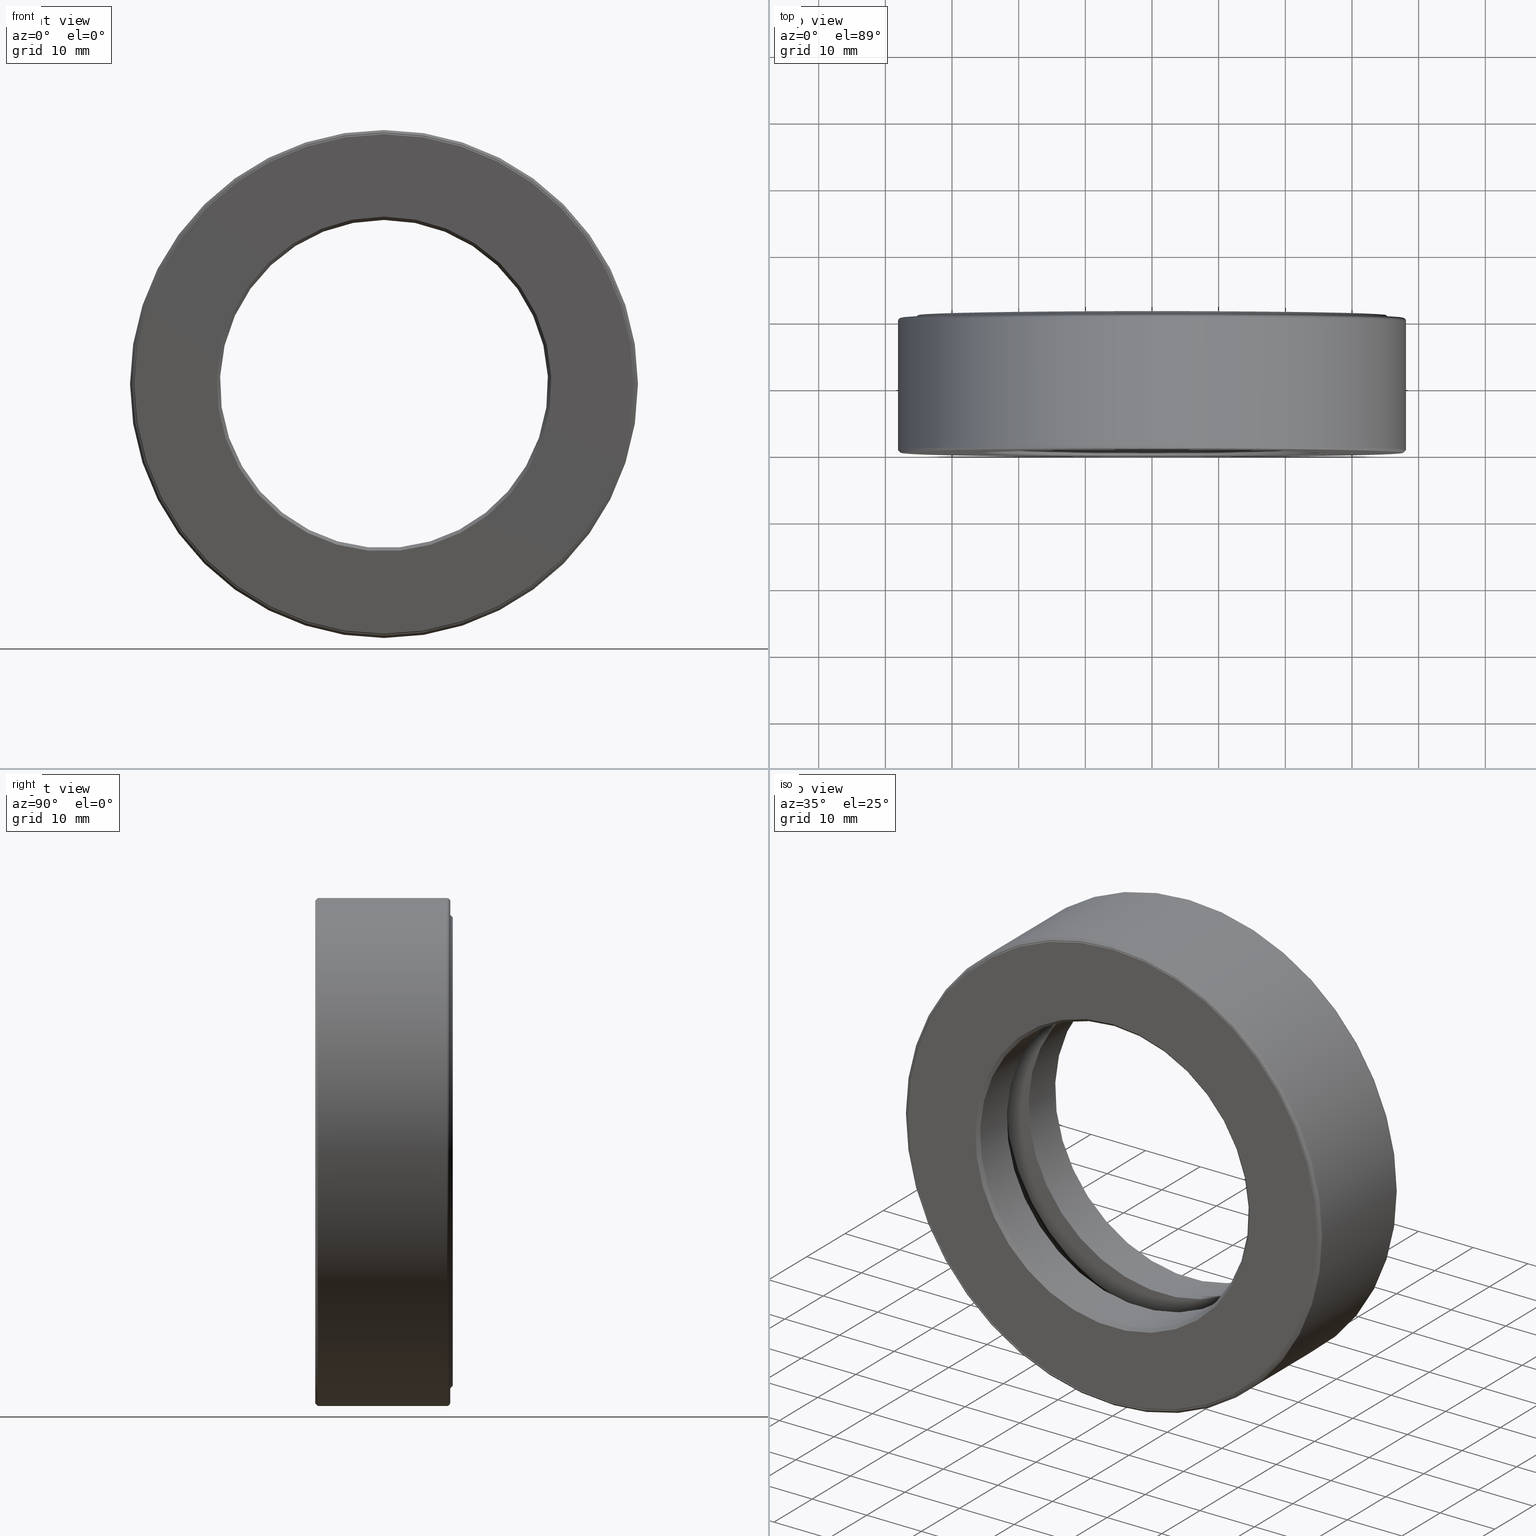
[diagram: canonical four-view strip — front | top / right | iso, engineering-drawing reading convention]
A machine part, canonical four-view strip (front | top / right | iso — engineering-drawing reading convention). The complete STEP part file that produces these views, byte-faithful:
ISO-10303-21;
HEADER;
FILE_DESCRIPTION (( 'STEP AP203' ),
    '1' );
FILE_NAME ('T-100-30.step',
    '2016-06-29T18:27:29',
    ( '' ),
    ( '' ),
    'SwSTEP 2.0',
    'SolidWorks 2016',
    '' );
FILE_SCHEMA (( 'CONFIG_CONTROL_DESIGN' ));
ENDSEC;

DATA;
#1 = CARTESIAN_POINT ( 'NONE',  ( 0.0000000000000000000, 0.5187499999999997100, 0.9687500000000001100 ) ) ;
#2 = APPROVAL_STATUS ( 'not_yet_approved' ) ;
#3 = EDGE_LOOP ( 'NONE', ( #564 ) ) ;
#4 = VERTEX_POINT ( 'NONE', #190 ) ;
#5 = ORIENTED_EDGE ( 'NONE', *, *, #63, .F. ) ;
#6 = CARTESIAN_POINT ( 'NONE',  ( 0.0000000000000000000, -8.323599355695802500E-017, 1.485000000000000100 ) ) ;
#7 = AXIS2_PLACEMENT_3D ( 'NONE', #551, #312, #440 ) ;
#8 = DIRECTION ( 'NONE',  ( 0.0000000000000000000, 0.0000000000000000000, 1.000000000000000000 ) ) ;
#9 = FACE_OUTER_BOUND ( 'NONE', #27, .T. ) ;
#10 = CARTESIAN_POINT ( 'NONE',  ( 0.0000000000000000000, 0.0000000000000000000, 0.0000000000000000000 ) ) ;
#11 = ORIENTED_EDGE ( 'NONE', *, *, #181, .T. ) ;
#12 = CIRCLE ( 'NONE', #398, 0.9687500000000001100 ) ;
#13 = EDGE_CURVE ( 'NONE', #537, #537, #278, .T. ) ;
#14 = AXIS2_PLACEMENT_3D ( 'NONE', #221, #179, #182 ) ;
#15 = CLOSED_SHELL ( 'NONE', ( #553, #34, #366, #40, #589, #276, #273, #214 ) ) ;
#16 = VERTEX_POINT ( 'NONE', #466 ) ;
#17 = EDGE_LOOP ( 'NONE', ( #71 ) ) ;
#18 = EDGE_LOOP ( 'NONE', ( #38 ) ) ;
#19 = EDGE_LOOP ( 'NONE', ( #397 ) ) ;
#20 = FACE_OUTER_BOUND ( 'NONE', #146, .T. ) ;
#21 = AXIS2_PLACEMENT_3D ( 'NONE', #37, #31, #460 ) ;
#22 = EDGE_CURVE ( 'NONE', #205, #205, #57, .T. ) ;
#23 = UNCERTAINTY_MEASURE_WITH_UNIT (LENGTH_MEASURE( 1.000000000000000100E-005 ), #427, 'distance_accuracy_value', 'NONE');
#24 = DIRECTION ( 'NONE',  ( -0.0000000000000000000, 1.000000000000000000, -0.0000000000000000000 ) ) ;
#25 = DIRECTION ( 'NONE',  ( -0.0000000000000000000, 1.000000000000000000, 0.0000000000000000000 ) ) ;
#26 = DIRECTION ( 'NONE',  ( -0.0000000000000000000, 1.000000000000000000, -0.0000000000000000000 ) ) ;
#27 = EDGE_LOOP ( 'NONE', ( #11 ) ) ;
#28 = VERTEX_POINT ( 'NONE', #45 ) ;
#29 = ADVANCED_FACE ( 'NONE', ( ), #367, .T. ) ;
#30 = CC_DESIGN_APPROVAL ( #346, ( #308 ) ) ;
#31 = DIRECTION ( 'NONE',  ( -0.0000000000000000000, 1.000000000000000000, -0.0000000000000000000 ) ) ;
#32 = AXIS2_PLACEMENT_3D ( 'NONE', #307, #26, #208 ) ;
#33 = CARTESIAN_POINT ( 'NONE',  ( 0.0000000000000000000, 0.0000000000000000000, 0.0000000000000000000 ) ) ;
#34 = ADVANCED_FACE ( 'NONE', ( #399, #102 ), #507, .F. ) ;
#35 = EDGE_LOOP ( 'NONE', ( #489 ) ) ;
#36 = VERTEX_POINT ( 'NONE', #100 ) ;
#37 = CARTESIAN_POINT ( 'NONE',  ( 0.0000000000000000000, 0.7245000000000004800, 0.0000000000000000000 ) ) ;
#38 = ORIENTED_EDGE ( 'NONE', *, *, #201, .F. ) ;
#39 = CONICAL_SURFACE ( 'NONE', #125, 1.474999999999999600, 0.7853981633974469500 ) ;
#40 = ADVANCED_FACE ( 'NONE', ( #114, #546 ), #153, .F. ) ;
#41 = PLANE ( 'NONE',  #358 ) ;
#42 = CARTESIAN_POINT ( 'NONE',  ( 0.0000000000000000000, 0.5187499999999997100, 0.0000000000000000000 ) ) ;
#43 = CARTESIAN_POINT ( 'NONE',  ( 0.0000000000000000000, 0.7774999999999998600, 0.0000000000000000000 ) ) ;
#44 = DIRECTION ( 'NONE',  ( 0.0000000000000000000, 0.0000000000000000000, 1.000000000000000000 ) ) ;
#45 = CARTESIAN_POINT ( 'NONE',  ( 0.0000000000000000000, 0.7245000000000004800, 1.472999999999999900 ) ) ;
#46 = APPROVAL_PERSON_ORGANIZATION ( #326, #331, #183 ) ;
#47 = ORIENTED_EDGE ( 'NONE', *, *, #13, .T. ) ;
#48 = VERTEX_POINT ( 'NONE', #425 ) ;
#49 = PERSON_AND_ORGANIZATION_ROLE ( 'classification_officer' ) ;
#50 = AXIS2_PLACEMENT_3D ( 'NONE', #43, #594, #453 ) ;
#51 = DIRECTION ( 'NONE',  ( 0.0000000000000000000, 0.0000000000000000000, 1.000000000000000000 ) ) ;
#52 = DIRECTION ( 'NONE',  ( 1.000000000000000000, 0.0000000000000000000, 0.0000000000000000000 ) ) ;
#53 = CARTESIAN_POINT ( 'NONE',  ( 0.0000000000000000000, 0.7774999999999998600, 1.420000000000000200 ) ) ;
#54 = APPROVAL ( #517, 'UNSPECIFIED' ) ;
#55 = DIRECTION ( 'NONE',  ( 0.0000000000000000000, 0.0000000000000000000, -1.000000000000000000 ) ) ;
#56 = APPLICATION_PROTOCOL_DEFINITION ( 'international standard', 'config_control_design', 1994, #343 ) ;
#57 = CIRCLE ( 'NONE', #566, 1.480000000000000000 ) ;
#58 = VERTEX_POINT ( 'NONE', #423 ) ;
#59 = CLOSED_SHELL ( 'NONE', ( #29 ) ) ;
#60 = CYLINDRICAL_SURFACE ( 'NONE', #14, 0.9687500000000001100 ) ;
#61 = DIRECTION ( 'NONE',  ( -0.0000000000000000000, 1.000000000000000000, -0.0000000000000000000 ) ) ;
#62 = AXIS2_PLACEMENT_3D ( 'NONE', #91, #274, #409 ) ;
#63 = EDGE_CURVE ( 'NONE', #508, #508, #199, .T. ) ;
#64 = AXIS2_PLACEMENT_3D ( 'NONE', #445, #493, #270 ) ;
#65 = CLOSED_SHELL ( 'NONE', ( #596 ) ) ;
#66 = VERTEX_POINT ( 'NONE', #472 ) ;
#67 = PRODUCT_DEFINITION_FORMATION_WITH_SPECIFIED_SOURCE ( 'ANY', '', #582, .NOT_KNOWN. ) ;
#68 = AXIS2_PLACEMENT_3D ( 'NONE', #117, #491, #408 ) ;
#69 = ORIENTED_EDGE ( 'NONE', *, *, #310, .F. ) ;
#70 = VERTEX_POINT ( 'NONE', #527 ) ;
#71 = ORIENTED_EDGE ( 'NONE', *, *, #323, .T. ) ;
#72 = CYLINDRICAL_SURFACE ( 'NONE', #130, 1.480000000000000000 ) ;
#73 = DIRECTION ( 'NONE',  ( -0.0000000000000000000, 1.000000000000000000, 0.0000000000000000000 ) ) ;
#74 = EDGE_LOOP ( 'NONE', ( #314 ) ) ;
#75 = VERTEX_POINT ( 'NONE', #193 ) ;
#76 = CARTESIAN_POINT ( 'NONE',  ( 0.0000000000000000000, 0.5187499999999997100, 0.0000000000000000000 ) ) ;
#77 = CC_DESIGN_PERSON_AND_ORGANIZATION_ASSIGNMENT ( #95, #333, ( #67 ) ) ;
#78 = EDGE_CURVE ( 'NONE', #195, #195, #412, .T. ) ;
#79 = ADVANCED_FACE ( 'NONE', ( #406, #499 ), #562, .F. ) ;
#80 = AXIS2_PLACEMENT_3D ( 'NONE', #133, #411, #561 ) ;
#81 = DIRECTION ( 'NONE',  ( 0.0000000000000000000, -1.000000000000000000, 0.0000000000000000000 ) ) ;
#82 = DIRECTION ( 'NONE',  ( -0.0000000000000000000, 1.000000000000000000, -0.0000000000000000000 ) ) ;
#83 = DATE_AND_TIME ( #471, #442 ) ;
#84 = EDGE_LOOP ( 'NONE', ( #430 ) ) ;
#85 = VERTEX_POINT ( 'NONE', #1 ) ;
#86 = ORIENTED_EDGE ( 'NONE', *, *, #323, .F. ) ;
#87 = FACE_OUTER_BOUND ( 'NONE', #377, .T. ) ;
#88 = ADVANCED_FACE ( 'NONE', ( #443, #327 ), #132, .F. ) ;
#89 = CARTESIAN_POINT ( 'NONE',  ( 0.0000000000000000000, 0.4062499999999997800, 0.0000000000000000000 ) ) ;
#90 = CC_DESIGN_SECURITY_CLASSIFICATION ( #256, ( #67 ) ) ;
#91 = CARTESIAN_POINT ( 'NONE',  ( 0.0000000000000000000, 0.5187499999999997100, 0.0000000000000000000 ) ) ;
#92 = AXIS2_PLACEMENT_3D ( 'NONE', #329, #380, #325 ) ;
#93 = CARTESIAN_POINT ( 'NONE',  ( 0.0000000000000000000, 0.5187499999999997100, 0.0000000000000000000 ) ) ;
#94 = FACE_BOUND ( 'NONE', #296, .T. ) ;
#95 = PERSON_AND_ORGANIZATION ( #202, #520 ) ;
#96 = APPROVAL_ROLE ( '' ) ;
#97 = FACE_OUTER_BOUND ( 'NONE', #595, .T. ) ;
#98 = AXIS2_PLACEMENT_3D ( 'NONE', #342, #55, #532 ) ;
#99 = APPLICATION_PROTOCOL_DEFINITION ( 'international standard', 'config_control_design', 1994, #384 ) ;
#100 = CARTESIAN_POINT ( 'NONE',  ( 0.0000000000000000000, 0.5187499999999997100, 1.133499999999999700 ) ) ;
#101 = DIRECTION ( 'NONE',  ( -1.000000000000000000, 0.0000000000000000000, 3.491481338843131800E-015 ) ) ;
#102 = FACE_OUTER_BOUND ( 'NONE', #230, .T. ) ;
#103 = FACE_OUTER_BOUND ( 'NONE', #35, .T. ) ;
#104 = CARTESIAN_POINT ( 'NONE',  ( 0.0000000000000000000, -8.216886543443291800E-017, 0.0000000000000000000 ) ) ;
#105 = EDGE_LOOP ( 'NONE', ( #204 ) ) ;
#106 = AXIS2_PLACEMENT_3D ( 'NONE', #245, #191, #574 ) ;
#107 = EDGE_CURVE ( 'NONE', #160, #160, #578, .T. ) ;
#108 = DIRECTION ( 'NONE',  ( -0.0000000000000000000, 1.000000000000000000, -0.0000000000000000000 ) ) ;
#109 = CIRCLE ( 'NONE', #62, 1.433499999999999800 ) ;
#110 = COORDINATED_UNIVERSAL_TIME_OFFSET ( 5, 0, .BEHIND. ) ;
#111 = CLOSED_SHELL ( 'NONE', ( #555, #88, #560, #79, #266, #283, #455, #509, #414, #548, #222, #171, #324, #495, #164, #225 ) ) ;
#112 = FACE_OUTER_BOUND ( 'NONE', #105, .T. ) ;
#113 = AXIS2_PLACEMENT_3D ( 'NONE', #217, #317, #371 ) ;
#114 = FACE_OUTER_BOUND ( 'NONE', #84, .T. ) ;
#115 = LOCAL_TIME ( 14, 27, 29.00000000000000000, #239 ) ;
#116 = EDGE_LOOP ( 'NONE', ( #528 ) ) ;
#117 = CARTESIAN_POINT ( 'NONE',  ( 0.0000000000000000000, 0.5187499999999997100, 0.0000000000000000000 ) ) ;
#118 = CARTESIAN_POINT ( 'NONE',  ( 2.800790529781973000E-016, 0.8124999999999998900, 0.0000000000000000000 ) ) ;
#119 = AXIS2_PLACEMENT_3D ( 'NONE', #148, #108, #150 ) ;
#120 = CIRCLE ( 'NONE', #251, 1.480000000000000000 ) ;
#121 = LOCAL_TIME ( 14, 27, 29.00000000000000000, #355 ) ;
#122 = ORIENTED_EDGE ( 'NONE', *, *, #13, .F. ) ;
#123 = CIRCLE ( 'NONE', #7, 1.480000000000000000 ) ;
#124 = EDGE_CURVE ( 'NONE', #593, #593, #290, .T. ) ;
#125 = AXIS2_PLACEMENT_3D ( 'NONE', #104, #243, #8 ) ;
#126 = ORIENTED_EDGE ( 'NONE', *, *, #107, .F. ) ;
#127 = PERSON_AND_ORGANIZATION ( #202, #520 ) ;
#128 = CARTESIAN_POINT ( 'NONE',  ( 1.122951057337007100E-033, -8.317945869304494700E-017, 0.0000000000000000000 ) ) ;
#129 = ORIENTED_EDGE ( 'NONE', *, *, #285, .T. ) ;
#130 = AXIS2_PLACEMENT_3D ( 'NONE', #10, #142, #344 ) ;
#131 = DIRECTION ( 'NONE',  ( -0.0000000000000000000, 1.000000000000000000, -0.0000000000000000000 ) ) ;
#132 = PLANE ( 'NONE',  #469 ) ;
#133 = CARTESIAN_POINT ( 'NONE',  ( 0.0000000000000000000, 0.0000000000000000000, 0.0000000000000000000 ) ) ;
#134 = CIRCLE ( 'NONE', #590, 1.133499999999999700 ) ;
#135 = ORIENTED_EDGE ( 'NONE', *, *, #379, .T. ) ;
#136 = FACE_OUTER_BOUND ( 'NONE', #185, .T. ) ;
#137 = MANIFOLD_SOLID_BREP ( 'Revolve2[1]', #111 ) ;
#138 = CARTESIAN_POINT ( 'NONE',  ( 0.0000000000000000000, 0.01499999999999984000, 0.0000000000000000000 ) ) ;
#139 = APPROVAL_STATUS ( 'not_yet_approved' ) ;
#140 = CARTESIAN_POINT ( 'NONE',  ( 0.0000000000000000000, 0.4062499999999997800, 0.0000000000000000000 ) ) ;
#141 = CARTESIAN_POINT ( 'NONE',  ( 0.0000000000000000000, 0.0000000000000000000, 0.0000000000000000000 ) ) ;
#142 = DIRECTION ( 'NONE',  ( -0.0000000000000000000, 1.000000000000000000, -0.0000000000000000000 ) ) ;
#143 = MECHANICAL_CONTEXT ( 'NONE', #384, 'mechanical' ) ;
#144 = EDGE_LOOP ( 'NONE', ( #452 ) ) ;
#145 = APPROVAL_PERSON_ORGANIZATION ( #174, #346, #96 ) ;
#146 = EDGE_LOOP ( 'NONE', ( #304 ) ) ;
#147 = AXIS2_PLACEMENT_3D ( 'NONE', #170, #82, #418 ) ;
#148 = CARTESIAN_POINT ( 'NONE',  ( 0.0000000000000000000, 0.8124999999999998900, 0.0000000000000000000 ) ) ;
#149 = CARTESIAN_POINT ( 'NONE',  ( 0.0000000000000000000, 0.8124999999999997800, 0.9887500000000003500 ) ) ;
#150 = DIRECTION ( 'NONE',  ( 0.0000000000000000000, 0.0000000000000000000, 1.000000000000000000 ) ) ;
#151 = CARTESIAN_POINT ( 'NONE',  ( 4.481316298405160600E-015, 0.4062499999999997800, 1.283499999999999900 ) ) ;
#152 = CARTESIAN_POINT ( 'NONE',  ( 0.0000000000000000000, 0.0000000000000000000, 0.0000000000000000000 ) ) ;
#153 = CYLINDRICAL_SURFACE ( 'NONE', #496, 0.9687500000000001100 ) ;
#154 = ORIENTED_EDGE ( 'NONE', *, *, #156, .F. ) ;
#155 = FACE_OUTER_BOUND ( 'NONE', #320, .T. ) ;
#156 = EDGE_CURVE ( 'NONE', #66, #66, #461, .T. ) ;
#157 = AXIS2_PLACEMENT_3D ( 'NONE', #140, #606, #467 ) ;
#158 = EDGE_CURVE ( 'NONE', #328, #328, #120, .T. ) ;
#159 = ORIENTED_EDGE ( 'NONE', *, *, #364, .T. ) ;
#160 = VERTEX_POINT ( 'NONE', #523 ) ;
#161 = ORIENTED_EDGE ( 'NONE', *, *, #310, .T. ) ;
#162 = SPHERICAL_SURFACE ( 'NONE', #98, 0.1874999999999999400 ) ;
#163 = PLANE ( 'NONE',  #581 ) ;
#164 = ADVANCED_FACE ( 'NONE', ( #511, #531 ), #60, .F. ) ;
#165 = DIRECTION ( 'NONE',  ( 0.0000000000000000000, 0.0000000000000000000, 1.000000000000000000 ) ) ;
#166 = ORIENTED_EDGE ( 'NONE', *, *, #424, .F. ) ;
#167 = DIRECTION ( 'NONE',  ( -0.0000000000000000000, 1.000000000000000000, -0.0000000000000000000 ) ) ;
#168 = ADVANCED_FACE ( 'NONE', ( ), #162, .T. ) ;
#169 = AXIS2_PLACEMENT_3D ( 'NONE', #93, #502, #219 ) ;
#170 = CARTESIAN_POINT ( 'NONE',  ( 0.0000000000000000000, -8.323599355695802500E-017, 0.0000000000000000000 ) ) ;
#171 = ADVANCED_FACE ( 'NONE', ( #136, #584 ), #39, .T. ) ;
#172 = DIRECTION ( 'NONE',  ( 0.0000000000000000000, 0.0000000000000000000, -1.000000000000000000 ) ) ;
#173 = EDGE_LOOP ( 'NONE', ( #154 ) ) ;
#174 = PERSON_AND_ORGANIZATION ( #202, #520 ) ;
#175 = ORIENTED_EDGE ( 'NONE', *, *, #390, .T. ) ;
#176 = CIRCLE ( 'NONE', #32, 1.420000000000000200 ) ;
#177 = DIRECTION ( 'NONE',  ( -0.0000000000000000000, 1.000000000000000000, 0.0000000000000000000 ) ) ;
#178 = AXIS2_PLACEMENT_3D ( 'NONE', #138, #226, #465 ) ;
#179 = DIRECTION ( 'NONE',  ( -0.0000000000000000000, 1.000000000000000000, -0.0000000000000000000 ) ) ;
#180 = DIRECTION ( 'NONE',  ( -0.0000000000000000000, 1.000000000000000000, 0.0000000000000000000 ) ) ;
#181 = EDGE_CURVE ( 'NONE', #500, #500, #603, .T. ) ;
#182 = DIRECTION ( 'NONE',  ( 0.0000000000000000000, 0.0000000000000000000, 1.000000000000000000 ) ) ;
#183 = APPROVAL_ROLE ( '' ) ;
#184 = AXIS2_PLACEMENT_3D ( 'NONE', #289, #192, #605 ) ;
#185 = EDGE_LOOP ( 'NONE', ( #432 ) ) ;
#186 = FACE_OUTER_BOUND ( 'NONE', #18, .T. ) ;
#187 = DIRECTION ( 'NONE',  ( 0.0000000000000000000, 0.0000000000000000000, 1.000000000000000000 ) ) ;
#188 = DATE_TIME_ROLE ( 'classification_date' ) ;
#189 = CARTESIAN_POINT ( 'NONE',  ( -6.088621761296505900E-017, 0.2937499999999999600, 0.0000000000000000000 ) ) ;
#190 = CARTESIAN_POINT ( 'NONE',  ( 0.0000000000000000000, 0.8124999999999998900, 1.385000000000000000 ) ) ;
#191 = DIRECTION ( 'NONE',  ( -0.0000000000000000000, 1.000000000000000000, -0.0000000000000000000 ) ) ;
#192 = DIRECTION ( 'NONE',  ( -0.0000000000000000000, 1.000000000000000000, -0.0000000000000000000 ) ) ;
#193 = CARTESIAN_POINT ( 'NONE',  ( 0.0000000000000000000, 0.7924999999999997600, 0.9687500000000001100 ) ) ;
#194 = EDGE_LOOP ( 'NONE', ( #135 ) ) ;
#195 = VERTEX_POINT ( 'NONE', #292 ) ;
#196 = ORIENTED_EDGE ( 'NONE', *, *, #156, .T. ) ;
#197 = CIRCLE ( 'NONE', #538, 0.9687500000000001100 ) ;
#198 = AXIS2_PLACEMENT_3D ( 'NONE', #264, #549, #487 ) ;
#199 = CIRCLE ( 'NONE', #382, 0.9887500000000003500 ) ;
#200 = SPHERICAL_SURFACE ( 'NONE', #203, 0.1874999999999999400 ) ;
#201 = EDGE_CURVE ( 'NONE', #269, #269, #282, .T. ) ;
#202 = PERSON ( 'UNSPECIFIED', 'UNSPECIFIED', 'UNSPECIFIED', ('UNSPECIFIED'), ('UNSPECIFIED'), ('UNSPECIFIED') ) ;
#203 = AXIS2_PLACEMENT_3D ( 'NONE', #151, #101, #470 ) ;
#204 = ORIENTED_EDGE ( 'NONE', *, *, #22, .T. ) ;
#205 = VERTEX_POINT ( 'NONE', #420 ) ;
#206 = ORIENTED_EDGE ( 'NONE', *, *, #124, .T. ) ;
#207 = CONICAL_SURFACE ( 'NONE', #599, 0.9687500000000000000, 0.7853981633974586000 ) ;
#208 = DIRECTION ( 'NONE',  ( 0.0000000000000000000, 0.0000000000000000000, 1.000000000000000000 ) ) ;
#209 = EDGE_CURVE ( 'NONE', #4, #4, #482, .T. ) ;
#210 = FACE_OUTER_BOUND ( 'NONE', #194, .T. ) ;
#211 = EDGE_LOOP ( 'NONE', ( #5 ) ) ;
#212 = CIRCLE ( 'NONE', #220, 1.133499999999999700 ) ;
#213 = DIRECTION ( 'NONE',  ( 0.0000000000000000000, 0.0000000000000000000, 1.000000000000000000 ) ) ;
#214 = ADVANCED_FACE ( 'NONE', ( #87, #402 ), #231, .T. ) ;
#215 = AXIS2_PLACEMENT_3D ( 'NONE', #42, #417, #44 ) ;
#216 = DIRECTION ( 'NONE',  ( 0.0000000000000000000, 0.0000000000000000000, 1.000000000000000000 ) ) ;
#217 = CARTESIAN_POINT ( 'NONE',  ( 0.0000000000000000000, 0.7974999999999998800, 0.0000000000000000000 ) ) ;
#218 = ORIENTED_EDGE ( 'NONE', *, *, #235, .T. ) ;
#219 = DIRECTION ( 'NONE',  ( 0.0000000000000000000, -0.0000000000000000000, -1.000000000000000000 ) ) ;
#220 = AXIS2_PLACEMENT_3D ( 'NONE', #76, #404, #306 ) ;
#221 = CARTESIAN_POINT ( 'NONE',  ( 0.0000000000000000000, 0.0000000000000000000, 0.0000000000000000000 ) ) ;
#222 = ADVANCED_FACE ( 'NONE', ( #155, #112 ), #72, .F. ) ;
#223 = DIRECTION ( 'NONE',  ( -0.0000000000000000000, 1.000000000000000000, -0.0000000000000000000 ) ) ;
#224 = DIRECTION ( 'NONE',  ( 0.0000000000000000000, -0.0000000000000000000, -1.000000000000000000 ) ) ;
#225 = ADVANCED_FACE ( 'NONE', ( #542, #210 ), #335, .F. ) ;
#226 = DIRECTION ( 'NONE',  ( -0.0000000000000000000, 1.000000000000000000, -0.0000000000000000000 ) ) ;
#227 = CIRCLE ( 'NONE', #322, 1.433499999999999800 ) ;
#228 = PERSON_AND_ORGANIZATION ( #202, #520 ) ;
#229 = DIRECTION ( 'NONE',  ( -0.0000000000000000000, 1.000000000000000000, -0.0000000000000000000 ) ) ;
#230 = EDGE_LOOP ( 'NONE', ( #166 ) ) ;
#231 = CYLINDRICAL_SURFACE ( 'NONE', #288, 1.472999999999999900 ) ;
#232 = CARTESIAN_POINT ( 'NONE',  ( 0.0000000000000000000, 0.8124999999999997800, 0.0000000000000000000 ) ) ;
#233 = SECURITY_CLASSIFICATION_LEVEL ( 'unclassified' ) ;
#234 = APPROVAL_ROLE ( '' ) ;
#235 = EDGE_CURVE ( 'NONE', #85, #85, #12, .T. ) ;
#236 = DATE_TIME_ROLE ( 'creation_date' ) ;
#237 = AXIS2_PLACEMENT_3D ( 'NONE', #89, #505, #604 ) ;
#238 = EDGE_LOOP ( 'NONE', ( #161 ) ) ;
#239 = COORDINATED_UNIVERSAL_TIME_OFFSET ( 5, 0, .BEHIND. ) ;
#240 = DIRECTION ( 'NONE',  ( 0.0000000000000000000, -1.000000000000000000, 0.0000000000000000000 ) ) ;
#241 = ORIENTED_EDGE ( 'NONE', *, *, #334, .T. ) ;
#242 = CARTESIAN_POINT ( 'NONE',  ( 0.0000000000000000000, 0.2937499999999999600, 1.133499999999999700 ) ) ;
#243 = DIRECTION ( 'NONE',  ( -0.0000000000000000000, 1.000000000000000000, -0.0000000000000000000 ) ) ;
#244 =( NAMED_UNIT ( * ) PLANE_ANGLE_UNIT ( ) SI_UNIT ( $, .RADIAN. ) );
#245 = CARTESIAN_POINT ( 'NONE',  ( 0.0000000000000000000, 0.2937499999999998400, 0.0000000000000000000 ) ) ;
#246 = TOROIDAL_SURFACE ( 'NONE', #50, 1.480000000000000000, 0.02000000000000005900 ) ;
#247 = APPROVAL_PERSON_ORGANIZATION ( #228, #54, #234 ) ;
#248 = MANIFOLD_SOLID_BREP ( 'BALLS[2]', #338 ) ;
#249 = EDGE_LOOP ( 'NONE', ( #484 ) ) ;
#250 = FACE_BOUND ( 'NONE', #421, .T. ) ;
#251 = AXIS2_PLACEMENT_3D ( 'NONE', #387, #61, #51 ) ;
#252 = DIRECTION ( 'NONE',  ( -0.0000000000000000000, 1.000000000000000000, -0.0000000000000000000 ) ) ;
#253 = ORIENTED_EDGE ( 'NONE', *, *, #78, .T. ) ;
#254 = APPROVAL_DATE_TIME ( #297, #346 ) ;
#255 = EDGE_LOOP ( 'NONE', ( #126 ) ) ;
#256 = SECURITY_CLASSIFICATION ( '', '', #233 ) ;
#257 = AXIS2_PLACEMENT_3D ( 'NONE', #458, #597, #554 ) ;
#258 = EDGE_CURVE ( 'NONE', #75, #75, #197, .T. ) ;
#259 = CARTESIAN_POINT ( 'NONE',  ( -2.823461359840090800E-032, -4.108443271721645900E-017, 0.0000000000000000000 ) ) ;
#260 = SPHERICAL_SURFACE ( 'NONE', #257, 0.1874999999999999400 ) ;
#261 = EDGE_LOOP ( 'NONE', ( #271 ) ) ;
#262 = FACE_OUTER_BOUND ( 'NONE', #19, .T. ) ;
#263 = DIRECTION ( 'NONE',  ( -0.0000000000000000000, 1.000000000000000000, -0.0000000000000000000 ) ) ;
#264 = CARTESIAN_POINT ( 'NONE',  ( 0.0000000000000000000, 0.0000000000000000000, 0.0000000000000000000 ) ) ;
#265 = PLANE ( 'NONE',  #68 ) ;
#266 = ADVANCED_FACE ( 'NONE', ( #490, #20 ), #479, .F. ) ;
#267 = DIRECTION ( 'NONE',  ( 1.047444401652939500E-014, 0.0000000000000000000, 1.000000000000000000 ) ) ;
#268 = EDGE_LOOP ( 'NONE', ( #159 ) ) ;
#269 = VERTEX_POINT ( 'NONE', #476 ) ;
#270 = DIRECTION ( 'NONE',  ( 0.0000000000000000000, 0.0000000000000000000, 1.000000000000000000 ) ) ;
#271 = ORIENTED_EDGE ( 'NONE', *, *, #524, .F. ) ;
#272 =( GEOMETRIC_REPRESENTATION_CONTEXT ( 3 ) GLOBAL_UNCERTAINTY_ASSIGNED_CONTEXT ( ( #23 ) ) GLOBAL_UNIT_ASSIGNED_CONTEXT ( ( #427, #244, #567 ) ) REPRESENTATION_CONTEXT ( 'NONE', 'WORKASPACE' ) );
#273 = ADVANCED_FACE ( 'NONE', ( #378, #94 ), #394, .T. ) ;
#274 = DIRECTION ( 'NONE',  ( -0.0000000000000000000, 1.000000000000000000, -0.0000000000000000000 ) ) ;
#275 = CARTESIAN_POINT ( 'NONE',  ( 0.0000000000000000000, 0.2937499999999999600, 0.0000000000000000000 ) ) ;
#276 = ADVANCED_FACE ( 'NONE', ( #351, #601 ), #163, .T. ) ;
#277 = PRODUCT_RELATED_PRODUCT_CATEGORY ( 'detail', '', ( #582 ) ) ;
#278 = CIRCLE ( 'NONE', #534, 0.9887500000000003500 ) ;
#279 = VERTEX_POINT ( 'NONE', #563 ) ;
#280 = DESIGN_CONTEXT ( 'detailed design', #343, 'design' ) ;
#281 = EDGE_LOOP ( 'NONE', ( #86 ) ) ;
#282 = CIRCLE ( 'NONE', #106, 1.480000000000000000 ) ;
#283 = ADVANCED_FACE ( 'NONE', ( #416, #431 ), #498, .F. ) ;
#284 = CARTESIAN_POINT ( 'NONE',  ( 0.0000000000000000000, 0.01999999999999992400, 0.0000000000000000000 ) ) ;
#285 = EDGE_CURVE ( 'NONE', #70, #70, #359, .T. ) ;
#286 = DIRECTION ( 'NONE',  ( 0.0000000000000000000, 0.0000000000000000000, 1.000000000000000000 ) ) ;
#287 = CARTESIAN_POINT ( 'NONE',  ( 0.0000000000000000000, 0.2937500000000000100, 0.9687500000000001100 ) ) ;
#288 = AXIS2_PLACEMENT_3D ( 'NONE', #152, #478, #525 ) ;
#289 = CARTESIAN_POINT ( 'NONE',  ( 0.0000000000000000000, 0.7924999999999997600, 0.0000000000000000000 ) ) ;
#290 = CIRCLE ( 'NONE', #92, 1.485000000000000100 ) ;
#291 = VERTEX_POINT ( 'NONE', #242 ) ;
#292 = CARTESIAN_POINT ( 'NONE',  ( 0.0000000000000000000, 0.5187499999999997100, 1.472999999999999900 ) ) ;
#293 = PRODUCT_DEFINITION_SHAPE ( 'NONE', 'NONE',  #308 ) ;
#294 = CARTESIAN_POINT ( 'NONE',  ( 0.0000000000000000000, 0.7774999999999998600, 1.500000000000000200 ) ) ;
#295 = CARTESIAN_POINT ( 'NONE',  ( 0.0000000000000000000, 0.0000000000000000000, 0.9887500000000003500 ) ) ;
#296 = EDGE_LOOP ( 'NONE', ( #501 ) ) ;
#297 = DATE_AND_TIME ( #541, #572 ) ;
#298 = ORIENTED_EDGE ( 'NONE', *, *, #63, .T. ) ;
#299 = FACE_BOUND ( 'NONE', #415, .T. ) ;
#300 = EDGE_CURVE ( 'NONE', #48, #48, #123, .T. ) ;
#301 = PERSON_AND_ORGANIZATION ( #202, #520 ) ;
#302 = EDGE_LOOP ( 'NONE', ( #241 ) ) ;
#303 = CC_DESIGN_PERSON_AND_ORGANIZATION_ASSIGNMENT ( #318, #49, ( #256 ) ) ;
#304 = ORIENTED_EDGE ( 'NONE', *, *, #524, .T. ) ;
#305 = CYLINDRICAL_SURFACE ( 'NONE', #80, 1.499999999999999800 ) ;
#306 = DIRECTION ( 'NONE',  ( 0.0000000000000000000, 0.0000000000000000000, 1.000000000000000000 ) ) ;
#307 = CARTESIAN_POINT ( 'NONE',  ( 0.0000000000000000000, 0.7774999999999998600, 0.0000000000000000000 ) ) ;
#308 = PRODUCT_DEFINITION ( 'UNKNOWN', '', #67, #280 ) ;
#309 = MANIFOLD_SOLID_BREP ( 'BALLS[3]', #59 ) ;
#310 = EDGE_CURVE ( 'NONE', #422, #422, #176, .T. ) ;
#311 = DIRECTION ( 'NONE',  ( 0.0000000000000000000, 0.0000000000000000000, 1.000000000000000000 ) ) ;
#312 = DIRECTION ( 'NONE',  ( -0.0000000000000000000, 1.000000000000000000, -0.0000000000000000000 ) ) ;
#313 = DATE_AND_TIME ( #535, #121 ) ;
#314 = ORIENTED_EDGE ( 'NONE', *, *, #235, .F. ) ;
#315 = LENGTH_MEASURE_WITH_UNIT ( LENGTH_MEASURE( 0.02539999999999999900 ), #569 );
#316 = DIRECTION ( 'NONE',  ( 0.0000000000000000000, 0.0000000000000000000, 1.000000000000000000 ) ) ;
#317 = DIRECTION ( 'NONE',  ( -0.0000000000000000000, 1.000000000000000000, -0.0000000000000000000 ) ) ;
#318 = PERSON_AND_ORGANIZATION ( #202, #520 ) ;
#319 = EDGE_LOOP ( 'NONE', ( #436 ) ) ;
#320 = EDGE_LOOP ( 'NONE', ( #585 ) ) ;
#321 = CIRCLE ( 'NONE', #21, 1.472999999999999900 ) ;
#322 = AXIS2_PLACEMENT_3D ( 'NONE', #544, #24, #165 ) ;
#323 = EDGE_CURVE ( 'NONE', #485, #485, #347, .T. ) ;
#324 = ADVANCED_FACE ( 'NONE', ( #262, #361 ), #543, .F. ) ;
#325 = DIRECTION ( 'NONE',  ( 0.0000000000000000000, 0.0000000000000000000, 1.000000000000000000 ) ) ;
#326 = PERSON_AND_ORGANIZATION ( #202, #520 ) ;
#327 = FACE_OUTER_BOUND ( 'NONE', #557, .T. ) ;
#328 = VERTEX_POINT ( 'NONE', #330 ) ;
#329 = CARTESIAN_POINT ( 'NONE',  ( 0.0000000000000000000, -8.323599355695802500E-017, 0.0000000000000000000 ) ) ;
#330 = CARTESIAN_POINT ( 'NONE',  ( 0.0000000000000000000, -8.312292382913186900E-017, 1.480000000000000000 ) ) ;
#331 = APPROVAL ( #139, 'UNSPECIFIED' ) ;
#332 = CARTESIAN_POINT ( 'NONE',  ( 0.0000000000000000000, 0.7774999999999998600, 0.0000000000000000000 ) ) ;
#333 = PERSON_AND_ORGANIZATION_ROLE ( 'design_supplier' ) ;
#334 = EDGE_CURVE ( 'NONE', #16, #16, #227, .T. ) ;
#335 = PLANE ( 'NONE',  #526 ) ;
#336 = AXIS2_PLACEMENT_3D ( 'NONE', #141, #337, #52 ) ;
#337 = DIRECTION ( 'NONE',  ( 0.0000000000000000000, 0.0000000000000000000, 1.000000000000000000 ) ) ;
#338 = CLOSED_SHELL ( 'NONE', ( #449 ) ) ;
#339 = CONICAL_SURFACE ( 'NONE', #184, 0.9687500000000001100, 0.7853981633974551600 ) ;
#340 = EDGE_LOOP ( 'NONE', ( #196 ) ) ;
#341 = CIRCLE ( 'NONE', #113, 1.420000000000000200 ) ;
#342 = CARTESIAN_POINT ( 'NONE',  ( -1.283499999999999900, 0.4062499999999997800, 0.0000000000000000000 ) ) ;
#343 = APPLICATION_CONTEXT ( 'configuration controlled 3d designs of mechanical parts and assemblies' ) ;
#344 = DIRECTION ( 'NONE',  ( 0.0000000000000000000, 0.0000000000000000000, 1.000000000000000000 ) ) ;
#345 = DIRECTION ( 'NONE',  ( -0.0000000000000000000, 1.000000000000000000, -0.0000000000000000000 ) ) ;
#346 = APPROVAL ( #2, 'UNSPECIFIED' ) ;
#347 = CIRCLE ( 'NONE', #64, 0.9687500000000001100 ) ;
#348 = APPROVAL_DATE_TIME ( #83, #331 ) ;
#349 = DIRECTION ( 'NONE',  ( 0.0000000000000000000, 0.0000000000000000000, 1.000000000000000000 ) ) ;
#350 = ORIENTED_EDGE ( 'NONE', *, *, #201, .T. ) ;
#351 = FACE_OUTER_BOUND ( 'NONE', #580, .T. ) ;
#352 = CARTESIAN_POINT ( 'NONE',  ( 0.0000000000000000000, 0.5187499999999997100, 0.0000000000000000000 ) ) ;
#353 = AXIS2_PLACEMENT_3D ( 'NONE', #284, #598, #376 ) ;
#354 = CARTESIAN_POINT ( 'NONE',  ( 0.0000000000000000000, 0.7924999999999997600, 0.0000000000000000000 ) ) ;
#355 = COORDINATED_UNIVERSAL_TIME_OFFSET ( 5, 0, .BEHIND. ) ;
#356 = ORIENTED_EDGE ( 'NONE', *, *, #424, .T. ) ;
#357 = EDGE_LOOP ( 'NONE', ( #356 ) ) ;
#358 = AXIS2_PLACEMENT_3D ( 'NONE', #128, #180, #513 ) ;
#359 = CIRCLE ( 'NONE', #568, 1.474999999999999600 ) ;
#360 = EDGE_LOOP ( 'NONE', ( #69 ) ) ;
#361 = FACE_BOUND ( 'NONE', #592, .T. ) ;
#362 = DIRECTION ( 'NONE',  ( -0.0000000000000000000, 1.000000000000000000, -0.0000000000000000000 ) ) ;
#363 = DIRECTION ( 'NONE',  ( 0.0000000000000000000, 0.0000000000000000000, 1.000000000000000000 ) ) ;
#364 = EDGE_CURVE ( 'NONE', #36, #36, #212, .T. ) ;
#365 = CARTESIAN_POINT ( 'NONE',  ( 0.0000000000000000000, 0.0000000000000000000, 0.0000000000000000000 ) ) ;
#366 = ADVANCED_FACE ( 'NONE', ( #250, #586 ), #265, .T. ) ;
#367 = SPHERICAL_SURFACE ( 'NONE', #435, 0.1874999999999999400 ) ;
#368 = EDGE_LOOP ( 'NONE', ( #474 ) ) ;
#369 = AXIS2_PLACEMENT_3D ( 'NONE', #332, #131, #419 ) ;
#370 = DIRECTION ( 'NONE',  ( 0.0000000000000000000, 0.0000000000000000000, 1.000000000000000000 ) ) ;
#371 = DIRECTION ( 'NONE',  ( 0.0000000000000000000, 0.0000000000000000000, 1.000000000000000000 ) ) ;
#372 = DIMENSIONAL_EXPONENTS ( 1.000000000000000000, 0.0000000000000000000, 0.0000000000000000000, 0.0000000000000000000, 0.0000000000000000000, 0.0000000000000000000, 0.0000000000000000000 ) ;
#373 = CC_DESIGN_APPROVAL ( #331, ( #67 ) ) ;
#374 = FACE_BOUND ( 'NONE', #357, .T. ) ;
#375 = DATE_AND_TIME ( #462, #115 ) ;
#376 = DIRECTION ( 'NONE',  ( 0.0000000000000000000, 0.0000000000000000000, 1.000000000000000000 ) ) ;
#377 = EDGE_LOOP ( 'NONE', ( #253 ) ) ;
#378 = FACE_OUTER_BOUND ( 'NONE', #481, .T. ) ;
#379 = EDGE_CURVE ( 'NONE', #291, #291, #134, .T. ) ;
#380 = DIRECTION ( 'NONE',  ( -0.0000000000000000000, 1.000000000000000000, -0.0000000000000000000 ) ) ;
#381 = CARTESIAN_POINT ( 'NONE',  ( 0.0000000000000000000, 0.5187499999999997100, 1.433499999999999800 ) ) ;
#382 = AXIS2_PLACEMENT_3D ( 'NONE', #232, #600, #187 ) ;
#383 = CARTESIAN_POINT ( 'NONE',  ( -4.314410473864969900E-016, 0.2937499999999999000, 0.0000000000000000000 ) ) ;
#384 = APPLICATION_CONTEXT ( 'configuration controlled 3d designs of mechanical parts and assemblies' ) ;
#385 = CLOSED_SHELL ( 'NONE', ( #168 ) ) ;
#386 = COORDINATED_UNIVERSAL_TIME_OFFSET ( 5, 0, .BEHIND. ) ;
#387 = CARTESIAN_POINT ( 'NONE',  ( 0.0000000000000000000, -8.312292382913186900E-017, 0.0000000000000000000 ) ) ;
#388 = EDGE_LOOP ( 'NONE', ( #129 ) ) ;
#389 = PERSON_AND_ORGANIZATION_ROLE ( 'design_owner' ) ;
#390 = EDGE_CURVE ( 'NONE', #28, #28, #321, .T. ) ;
#391 = CONICAL_SURFACE ( 'NONE', #147, 1.485000000000000100, 0.7853981633974409500 ) ;
#392 = FACE_OUTER_BOUND ( 'NONE', #401, .T. ) ;
#393 = ORIENTED_EDGE ( 'NONE', *, *, #107, .T. ) ;
#394 = CONICAL_SURFACE ( 'NONE', #477, 1.385000000000000000, 0.7853981633974498300 ) ;
#395 = ORIENTED_EDGE ( 'NONE', *, *, #124, .F. ) ;
#396 = FACE_OUTER_BOUND ( 'NONE', #463, .T. ) ;
#397 = ORIENTED_EDGE ( 'NONE', *, *, #285, .F. ) ;
#398 = AXIS2_PLACEMENT_3D ( 'NONE', #352, #252, #349 ) ;
#399 = FACE_OUTER_BOUND ( 'NONE', #268, .T. ) ;
#400 = PERSON_AND_ORGANIZATION ( #202, #520 ) ;
#401 = EDGE_LOOP ( 'NONE', ( #393 ) ) ;
#402 = FACE_OUTER_BOUND ( 'NONE', #428, .T. ) ;
#403 = CARTESIAN_POINT ( 'NONE',  ( 0.0000000000000000000, -8.216886543443291800E-017, 0.0000000000000000000 ) ) ;
#404 = DIRECTION ( 'NONE',  ( -0.0000000000000000000, 1.000000000000000000, -0.0000000000000000000 ) ) ;
#405 = CARTESIAN_POINT ( 'NONE',  ( 0.0000000000000000000, 0.7974999999999998800, 0.0000000000000000000 ) ) ;
#406 = FACE_OUTER_BOUND ( 'NONE', #255, .T. ) ;
#407 = SHAPE_DEFINITION_REPRESENTATION ( #293, #533 ) ;
#408 = DIRECTION ( 'NONE',  ( 0.0000000000000000000, -0.0000000000000000000, -1.000000000000000000 ) ) ;
#409 = DIRECTION ( 'NONE',  ( 0.0000000000000000000, 0.0000000000000000000, 1.000000000000000000 ) ) ;
#410 = CARTESIAN_POINT ( 'NONE',  ( 0.0000000000000000000, 0.0000000000000000000, 0.0000000000000000000 ) ) ;
#411 = DIRECTION ( 'NONE',  ( -0.0000000000000000000, 1.000000000000000000, -0.0000000000000000000 ) ) ;
#412 = CIRCLE ( 'NONE', #215, 1.472999999999999900 ) ;
#413 = FACE_OUTER_BOUND ( 'NONE', #302, .T. ) ;
#414 = ADVANCED_FACE ( 'NONE', ( #464, #299 ), #391, .T. ) ;
#415 = EDGE_LOOP ( 'NONE', ( #206 ) ) ;
#416 = FACE_BOUND ( 'NONE', #261, .T. ) ;
#417 = DIRECTION ( 'NONE',  ( -0.0000000000000000000, 1.000000000000000000, -0.0000000000000000000 ) ) ;
#418 = DIRECTION ( 'NONE',  ( 0.0000000000000000000, 0.0000000000000000000, 1.000000000000000000 ) ) ;
#419 = DIRECTION ( 'NONE',  ( 0.0000000000000000000, 0.0000000000000000000, 1.000000000000000000 ) ) ;
#420 = CARTESIAN_POINT ( 'NONE',  ( 0.0000000000000000000, 0.005000000000000288100, 1.480000000000000000 ) ) ;
#421 = EDGE_LOOP ( 'NONE', ( #218 ) ) ;
#422 = VERTEX_POINT ( 'NONE', #53 ) ;
#423 = CARTESIAN_POINT ( 'NONE',  ( 0.0000000000000000000, 0.01999999999999992400, 0.9687500000000000000 ) ) ;
#424 = EDGE_CURVE ( 'NONE', #433, #433, #109, .T. ) ;
#425 = CARTESIAN_POINT ( 'NONE',  ( 0.0000000000000000000, 0.7974999999999998800, 1.480000000000000000 ) ) ;
#426 = AXIS2_PLACEMENT_3D ( 'NONE', #405, #81, #494 ) ;
#427 =( CONVERSION_BASED_UNIT ( 'INCH', #315 ) LENGTH_UNIT ( ) NAMED_UNIT ( #372 ) );
#428 = EDGE_LOOP ( 'NONE', ( #510 ) ) ;
#429 = CARTESIAN_POINT ( 'NONE',  ( 0.0000000000000000000, 0.7774999999999998600, 0.0000000000000000000 ) ) ;
#430 = ORIENTED_EDGE ( 'NONE', *, *, #258, .T. ) ;
#431 = FACE_OUTER_BOUND ( 'NONE', #116, .T. ) ;
#432 = ORIENTED_EDGE ( 'NONE', *, *, #22, .F. ) ;
#433 = VERTEX_POINT ( 'NONE', #381 ) ;
#434 = MANIFOLD_SOLID_BREP ( 'Revolve3', #385 ) ;
#435 = AXIS2_PLACEMENT_3D ( 'NONE', #492, #550, #267 ) ;
#436 = ORIENTED_EDGE ( 'NONE', *, *, #158, .T. ) ;
#437 = FACE_BOUND ( 'NONE', #319, .T. ) ;
#438 = AXIS2_PLACEMENT_3D ( 'NONE', #33, #223, #456 ) ;
#439 = EDGE_CURVE ( 'NONE', #58, #58, #575, .T. ) ;
#440 = DIRECTION ( 'NONE',  ( 0.0000000000000000000, 0.0000000000000000000, 1.000000000000000000 ) ) ;
#441 = FACE_OUTER_BOUND ( 'NONE', #340, .T. ) ;
#442 = LOCAL_TIME ( 14, 27, 29.00000000000000000, #110 ) ;
#443 = FACE_BOUND ( 'NONE', #519, .T. ) ;
#444 = FACE_BOUND ( 'NONE', #454, .T. ) ;
#445 = CARTESIAN_POINT ( 'NONE',  ( 0.0000000000000000000, 0.2937500000000000100, 0.0000000000000000000 ) ) ;
#446 = DIRECTION ( 'NONE',  ( 0.0000000000000000000, -1.000000000000000000, 0.0000000000000000000 ) ) ;
#447 = CC_DESIGN_DATE_AND_TIME_ASSIGNMENT ( #375, #236, ( #308 ) ) ;
#448 = DIRECTION ( 'NONE',  ( 0.0000000000000000000, -1.000000000000000000, 0.0000000000000000000 ) ) ;
#449 = ADVANCED_FACE ( 'NONE', ( ), #260, .T. ) ;
#450 = COORDINATED_UNIVERSAL_TIME_OFFSET ( 5, 0, .BEHIND. ) ;
#451 = AXIS2_PLACEMENT_3D ( 'NONE', #429, #345, #521 ) ;
#452 = ORIENTED_EDGE ( 'NONE', *, *, #439, .F. ) ;
#453 = DIRECTION ( 'NONE',  ( 0.0000000000000000000, 0.0000000000000000000, 1.000000000000000000 ) ) ;
#454 = EDGE_LOOP ( 'NONE', ( #530 ) ) ;
#455 = ADVANCED_FACE ( 'NONE', ( #577, #9 ), #246, .T. ) ;
#456 = DIRECTION ( 'NONE',  ( 0.0000000000000000000, 0.0000000000000000000, 1.000000000000000000 ) ) ;
#457 = DIRECTION ( 'NONE',  ( 0.0000000000000000000, -1.000000000000000000, 0.0000000000000000000 ) ) ;
#458 = CARTESIAN_POINT ( 'NONE',  ( 1.283499999999999900, 0.4062499999999997800, -8.962632596810321200E-015 ) ) ;
#459 = MANIFOLD_SOLID_BREP ( 'Revolve2[2]', #15 ) ;
#460 = DIRECTION ( 'NONE',  ( 0.0000000000000000000, 0.0000000000000000000, 1.000000000000000000 ) ) ;
#461 = CIRCLE ( 'NONE', #178, 1.499999999999999800 ) ;
#462 = CALENDAR_DATE ( 2016, 29, 6 ) ;
#463 = EDGE_LOOP ( 'NONE', ( #298 ) ) ;
#464 = FACE_OUTER_BOUND ( 'NONE', #173, .T. ) ;
#465 = DIRECTION ( 'NONE',  ( 0.0000000000000000000, 0.0000000000000000000, 1.000000000000000000 ) ) ;
#466 = CARTESIAN_POINT ( 'NONE',  ( 0.0000000000000000000, 0.2937499999999999000, 1.433499999999999800 ) ) ;
#467 = DIRECTION ( 'NONE',  ( 0.0000000000000000000, 0.0000000000000000000, 1.000000000000000000 ) ) ;
#468 = PERSON_AND_ORGANIZATION_ROLE ( 'creator' ) ;
#469 = AXIS2_PLACEMENT_3D ( 'NONE', #383, #457, #224 ) ;
#470 = DIRECTION ( 'NONE',  ( -3.491481338843131800E-015, 0.0000000000000000000, -1.000000000000000000 ) ) ;
#471 = CALENDAR_DATE ( 2016, 29, 6 ) ;
#472 = CARTESIAN_POINT ( 'NONE',  ( 0.0000000000000000000, 0.01499999999999984000, 1.499999999999999800 ) ) ;
#473 = EDGE_LOOP ( 'NONE', ( #395 ) ) ;
#474 = ORIENTED_EDGE ( 'NONE', *, *, #181, .F. ) ;
#475 = CC_DESIGN_PERSON_AND_ORGANIZATION_ASSIGNMENT ( #301, #515, ( #67 ) ) ;
#476 = CARTESIAN_POINT ( 'NONE',  ( 0.0000000000000000000, 0.2937499999999998400, 1.480000000000000000 ) ) ;
#477 = AXIS2_PLACEMENT_3D ( 'NONE', #583, #446, #587 ) ;
#478 = DIRECTION ( 'NONE',  ( -0.0000000000000000000, 1.000000000000000000, -0.0000000000000000000 ) ) ;
#479 = CYLINDRICAL_SURFACE ( 'NONE', #198, 1.420000000000000200 ) ;
#480 = CALENDAR_DATE ( 2016, 29, 6 ) ;
#481 = EDGE_LOOP ( 'NONE', ( #175 ) ) ;
#482 = CIRCLE ( 'NONE', #119, 1.385000000000000000 ) ;
#483 = CC_DESIGN_APPROVAL ( #54, ( #256 ) ) ;
#484 = ORIENTED_EDGE ( 'NONE', *, *, #300, .F. ) ;
#485 = VERTEX_POINT ( 'NONE', #287 ) ;
#486 = AXIS2_PLACEMENT_3D ( 'NONE', #514, #177, #286 ) ;
#487 = DIRECTION ( 'NONE',  ( 0.0000000000000000000, 0.0000000000000000000, 1.000000000000000000 ) ) ;
#488 = FACE_OUTER_BOUND ( 'NONE', #473, .T. ) ;
#489 = ORIENTED_EDGE ( 'NONE', *, *, #78, .F. ) ;
#490 = FACE_OUTER_BOUND ( 'NONE', #360, .T. ) ;
#491 = DIRECTION ( 'NONE',  ( 0.0000000000000000000, -1.000000000000000000, 0.0000000000000000000 ) ) ;
#492 = CARTESIAN_POINT ( 'NONE',  ( -1.344394889521548400E-014, 0.4062499999999997800, -1.283499999999999900 ) ) ;
#493 = DIRECTION ( 'NONE',  ( -0.0000000000000000000, 1.000000000000000000, -0.0000000000000000000 ) ) ;
#494 = DIRECTION ( 'NONE',  ( 0.0000000000000000000, -0.0000000000000000000, -1.000000000000000000 ) ) ;
#495 = ADVANCED_FACE ( 'NONE', ( #97, #444 ), #207, .F. ) ;
#496 = AXIS2_PLACEMENT_3D ( 'NONE', #410, #516, #512 ) ;
#497 = DIRECTION ( 'NONE',  ( 0.0000000000000000000, 0.0000000000000000000, 1.000000000000000000 ) ) ;
#498 = PLANE ( 'NONE',  #426 ) ;
#499 = FACE_BOUND ( 'NONE', #238, .T. ) ;
#500 = VERTEX_POINT ( 'NONE', #294 ) ;
#501 = ORIENTED_EDGE ( 'NONE', *, *, #209, .F. ) ;
#502 = DIRECTION ( 'NONE',  ( 0.0000000000000000000, -1.000000000000000000, 0.0000000000000000000 ) ) ;
#503 = PLANE ( 'NONE',  #169 ) ;
#504 = CC_DESIGN_PERSON_AND_ORGANIZATION_ASSIGNMENT ( #127, #468, ( #308 ) ) ;
#505 = DIRECTION ( 'NONE',  ( -0.0000000000000000000, 1.000000000000000000, -0.0000000000000000000 ) ) ;
#506 = AXIS2_PLACEMENT_3D ( 'NONE', #259, #73, #213 ) ;
#507 = TOROIDAL_SURFACE ( 'NONE', #157, 1.283499999999999900, 0.1874999999999999700 ) ;
#508 = VERTEX_POINT ( 'NONE', #149 ) ;
#509 = ADVANCED_FACE ( 'NONE', ( #573, #441 ), #305, .T. ) ;
#510 = ORIENTED_EDGE ( 'NONE', *, *, #390, .F. ) ;
#511 = FACE_OUTER_BOUND ( 'NONE', #144, .T. ) ;
#512 = DIRECTION ( 'NONE',  ( 0.0000000000000000000, 0.0000000000000000000, 1.000000000000000000 ) ) ;
#513 = DIRECTION ( 'NONE',  ( 0.0000000000000000000, 0.0000000000000000000, 1.000000000000000000 ) ) ;
#514 = CARTESIAN_POINT ( 'NONE',  ( 0.0000000000000000000, 0.7774999999999998600, 0.0000000000000000000 ) ) ;
#515 = PERSON_AND_ORGANIZATION_ROLE ( 'creator' ) ;
#516 = DIRECTION ( 'NONE',  ( -0.0000000000000000000, 1.000000000000000000, -0.0000000000000000000 ) ) ;
#517 = APPROVAL_STATUS ( 'not_yet_approved' ) ;
#518 = LOCAL_TIME ( 14, 27, 29.00000000000000000, #450 ) ;
#519 = EDGE_LOOP ( 'NONE', ( #576 ) ) ;
#520 = ORGANIZATION ( 'UNSPECIFIED', 'UNSPECIFIED', '' ) ;
#521 = DIRECTION ( 'NONE',  ( 0.0000000000000000000, 0.0000000000000000000, 1.000000000000000000 ) ) ;
#522 = ORIENTED_EDGE ( 'NONE', *, *, #209, .T. ) ;
#523 = CARTESIAN_POINT ( 'NONE',  ( 0.0000000000000000000, 0.7774999999999998600, 1.480000000000000000 ) ) ;
#524 = EDGE_CURVE ( 'NONE', #279, #279, #341, .T. ) ;
#525 = DIRECTION ( 'NONE',  ( 0.0000000000000000000, 0.0000000000000000000, 1.000000000000000000 ) ) ;
#526 = AXIS2_PLACEMENT_3D ( 'NONE', #189, #240, #570 ) ;
#527 = CARTESIAN_POINT ( 'NONE',  ( 0.0000000000000000000, -8.216886543443291800E-017, 1.474999999999999600 ) ) ;
#528 = ORIENTED_EDGE ( 'NONE', *, *, #300, .T. ) ;
#529 = TOROIDAL_SURFACE ( 'NONE', #237, 1.283499999999999900, 0.1874999999999999400 ) ;
#530 = ORIENTED_EDGE ( 'NONE', *, *, #439, .T. ) ;
#531 = FACE_OUTER_BOUND ( 'NONE', #17, .T. ) ;
#532 = DIRECTION ( 'NONE',  ( 1.000000000000000000, 0.0000000000000000000, 0.0000000000000000000 ) ) ;
#533 = ADVANCED_BREP_SHAPE_REPRESENTATION ( 'T-100-30', ( #137, #459, #434, #539, #248, #309, #336 ), #272 ) ;
#534 = AXIS2_PLACEMENT_3D ( 'NONE', #365, #167, #311 ) ;
#535 = CALENDAR_DATE ( 2016, 29, 6 ) ;
#536 = EDGE_LOOP ( 'NONE', ( #540 ) ) ;
#537 = VERTEX_POINT ( 'NONE', #295 ) ;
#538 = AXIS2_PLACEMENT_3D ( 'NONE', #354, #558, #216 ) ;
#539 = MANIFOLD_SOLID_BREP ( 'BALLS[1]', #65 ) ;
#540 = ORIENTED_EDGE ( 'NONE', *, *, #258, .F. ) ;
#541 = CALENDAR_DATE ( 2016, 29, 6 ) ;
#542 = FACE_BOUND ( 'NONE', #281, .T. ) ;
#543 = PLANE ( 'NONE',  #506 ) ;
#544 = CARTESIAN_POINT ( 'NONE',  ( 0.0000000000000000000, 0.2937499999999999000, 0.0000000000000000000 ) ) ;
#545 = CARTESIAN_POINT ( 'NONE',  ( 0.0000000000000000000, 0.005000000000000288100, 0.0000000000000000000 ) ) ;
#546 = FACE_OUTER_BOUND ( 'NONE', #74, .T. ) ;
#547 = FACE_OUTER_BOUND ( 'NONE', #3, .T. ) ;
#548 = ADVANCED_FACE ( 'NONE', ( #488, #437 ), #41, .F. ) ;
#549 = DIRECTION ( 'NONE',  ( -0.0000000000000000000, 1.000000000000000000, -0.0000000000000000000 ) ) ;
#550 = DIRECTION ( 'NONE',  ( 1.000000000000000000, 0.0000000000000000000, -1.047444401652939500E-014 ) ) ;
#551 = CARTESIAN_POINT ( 'NONE',  ( 0.0000000000000000000, 0.7974999999999998800, 0.0000000000000000000 ) ) ;
#552 = CC_DESIGN_PERSON_AND_ORGANIZATION_ASSIGNMENT ( #400, #389, ( #582 ) ) ;
#553 = ADVANCED_FACE ( 'NONE', ( #374, #103 ), #503, .T. ) ;
#554 = DIRECTION ( 'NONE',  ( -1.000000000000000000, 0.0000000000000000000, 6.982962677686263600E-015 ) ) ;
#555 = ADVANCED_FACE ( 'NONE', ( #547, #413 ), #529, .F. ) ;
#556 = ORIENTED_EDGE ( 'NONE', *, *, #364, .F. ) ;
#557 = EDGE_LOOP ( 'NONE', ( #350 ) ) ;
#558 = DIRECTION ( 'NONE',  ( -0.0000000000000000000, 1.000000000000000000, -0.0000000000000000000 ) ) ;
#559 = CARTESIAN_POINT ( 'NONE',  ( 0.0000000000000000000, 0.01999999999999992400, 0.0000000000000000000 ) ) ;
#560 = ADVANCED_FACE ( 'NONE', ( #186, #392 ), #579, .F. ) ;
#561 = DIRECTION ( 'NONE',  ( 0.0000000000000000000, 0.0000000000000000000, 1.000000000000000000 ) ) ;
#562 = PLANE ( 'NONE',  #486 ) ;
#563 = CARTESIAN_POINT ( 'NONE',  ( 0.0000000000000000000, 0.7974999999999998800, 1.420000000000000200 ) ) ;
#564 = ORIENTED_EDGE ( 'NONE', *, *, #379, .F. ) ;
#565 = FACE_BOUND ( 'NONE', #536, .T. ) ;
#566 = AXIS2_PLACEMENT_3D ( 'NONE', #545, #263, #497 ) ;
#567 =( NAMED_UNIT ( * ) SI_UNIT ( $, .STERADIAN. ) SOLID_ANGLE_UNIT ( ) );
#568 = AXIS2_PLACEMENT_3D ( 'NONE', #403, #362, #363 ) ;
#569 =( LENGTH_UNIT ( ) NAMED_UNIT ( * ) SI_UNIT ( $, .METRE. ) );
#570 = DIRECTION ( 'NONE',  ( 0.0000000000000000000, -0.0000000000000000000, -1.000000000000000000 ) ) ;
#571 = EDGE_LOOP ( 'NONE', ( #556 ) ) ;
#572 = LOCAL_TIME ( 14, 27, 29.00000000000000000, #386 ) ;
#573 = FACE_OUTER_BOUND ( 'NONE', #368, .T. ) ;
#574 = DIRECTION ( 'NONE',  ( 0.0000000000000000000, 0.0000000000000000000, 1.000000000000000000 ) ) ;
#575 = CIRCLE ( 'NONE', #353, 0.9687500000000000000 ) ;
#576 = ORIENTED_EDGE ( 'NONE', *, *, #334, .F. ) ;
#577 = FACE_OUTER_BOUND ( 'NONE', #249, .T. ) ;
#578 = CIRCLE ( 'NONE', #369, 1.480000000000000000 ) ;
#579 = CYLINDRICAL_SURFACE ( 'NONE', #438, 1.480000000000000000 ) ;
#580 = EDGE_LOOP ( 'NONE', ( #522 ) ) ;
#581 = AXIS2_PLACEMENT_3D ( 'NONE', #118, #25, #316 ) ;
#582 = PRODUCT ( 'T-100-30', 'T-100-30', '', ( #143 ) ) ;
#583 = CARTESIAN_POINT ( 'NONE',  ( 0.0000000000000000000, 0.8124999999999998900, 0.0000000000000000000 ) ) ;
#584 = FACE_BOUND ( 'NONE', #388, .T. ) ;
#585 = ORIENTED_EDGE ( 'NONE', *, *, #158, .F. ) ;
#586 = FACE_OUTER_BOUND ( 'NONE', #571, .T. ) ;
#587 = DIRECTION ( 'NONE',  ( 0.0000000000000000000, 0.0000000000000000000, -1.000000000000000000 ) ) ;
#588 = CC_DESIGN_DATE_AND_TIME_ASSIGNMENT ( #602, #188, ( #256 ) ) ;
#589 = ADVANCED_FACE ( 'NONE', ( #396, #565 ), #339, .F. ) ;
#590 = AXIS2_PLACEMENT_3D ( 'NONE', #275, #229, #370 ) ;
#591 = APPROVAL_DATE_TIME ( #313, #54 ) ;
#592 = EDGE_LOOP ( 'NONE', ( #47 ) ) ;
#593 = VERTEX_POINT ( 'NONE', #6 ) ;
#594 = DIRECTION ( 'NONE',  ( -0.0000000000000000000, 1.000000000000000000, -0.0000000000000000000 ) ) ;
#595 = EDGE_LOOP ( 'NONE', ( #122 ) ) ;
#596 = ADVANCED_FACE ( 'NONE', ( ), #200, .T. ) ;
#597 = DIRECTION ( 'NONE',  ( 6.982962677686263600E-015, -0.0000000000000000000, 1.000000000000000000 ) ) ;
#598 = DIRECTION ( 'NONE',  ( -0.0000000000000000000, 1.000000000000000000, -0.0000000000000000000 ) ) ;
#599 = AXIS2_PLACEMENT_3D ( 'NONE', #559, #448, #172 ) ;
#600 = DIRECTION ( 'NONE',  ( -0.0000000000000000000, 1.000000000000000000, -0.0000000000000000000 ) ) ;
#601 = FACE_BOUND ( 'NONE', #211, .T. ) ;
#602 = DATE_AND_TIME ( #480, #518 ) ;
#603 = CIRCLE ( 'NONE', #451, 1.500000000000000200 ) ;
#604 = DIRECTION ( 'NONE',  ( 0.0000000000000000000, 0.0000000000000000000, 1.000000000000000000 ) ) ;
#605 = DIRECTION ( 'NONE',  ( 0.0000000000000000000, 0.0000000000000000000, 1.000000000000000000 ) ) ;
#606 = DIRECTION ( 'NONE',  ( -0.0000000000000000000, 1.000000000000000000, -0.0000000000000000000 ) ) ;
ENDSEC;
END-ISO-10303-21;
